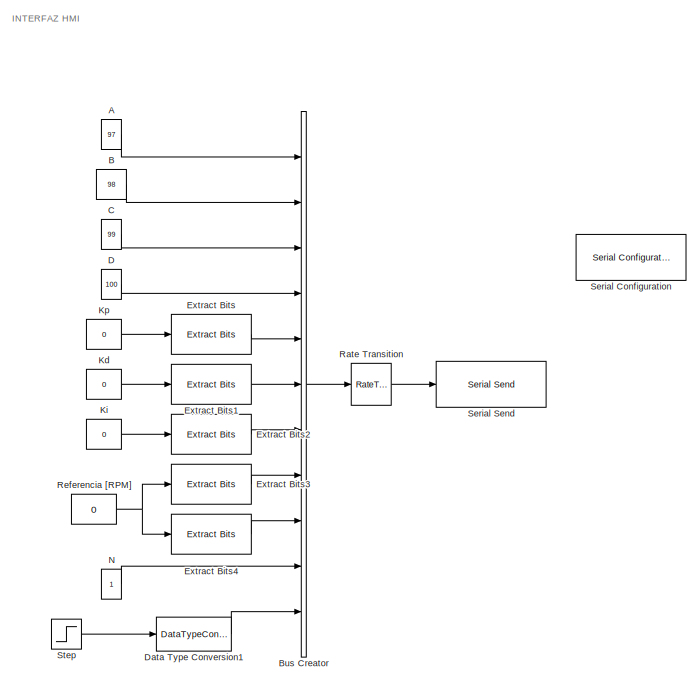
[diagram: root canvas - part 1/2, middle left region]
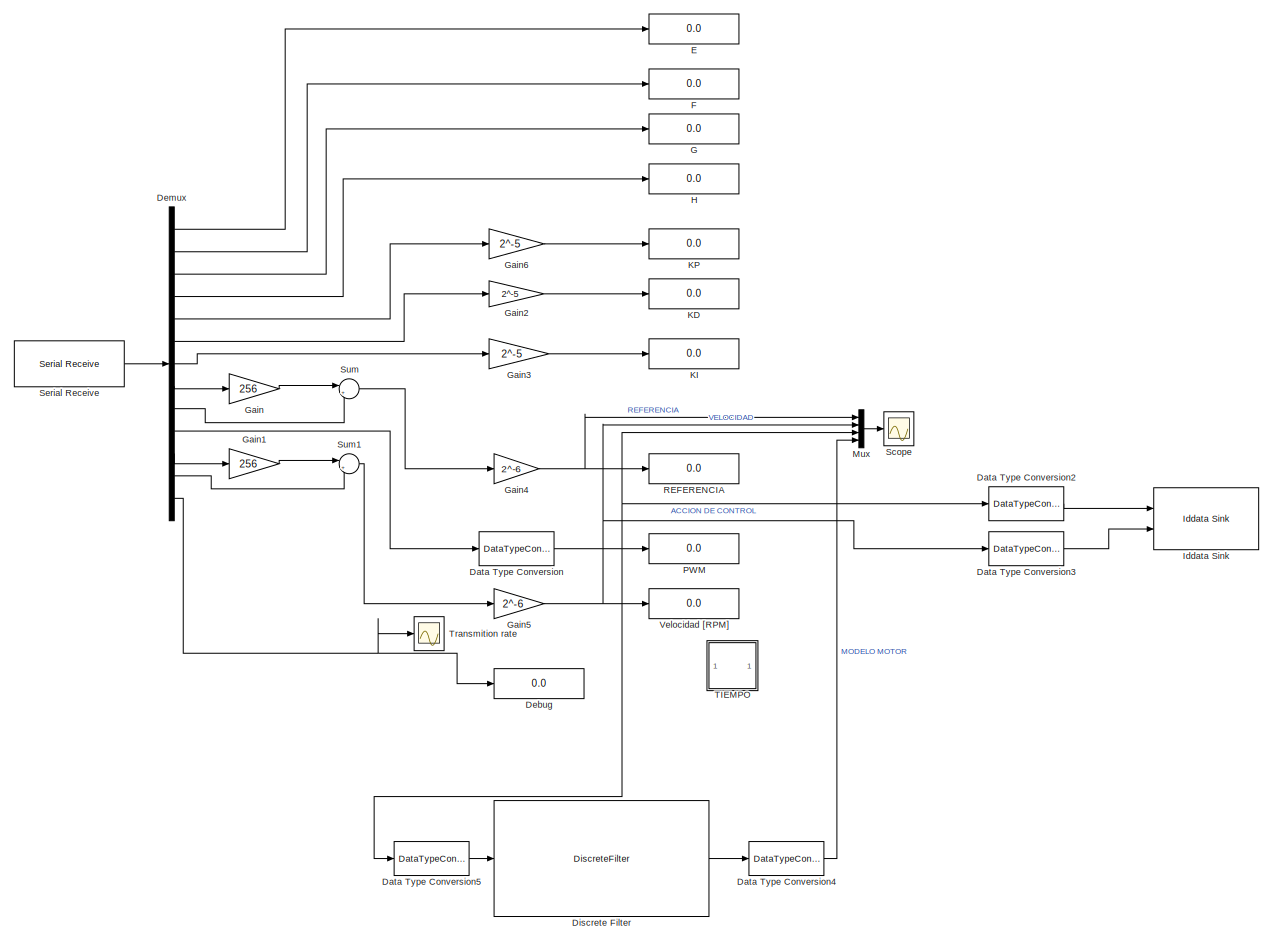
[diagram: root canvas - part 2/2, right side, full height]
MODEL slx_af8e4e631dcb
KIND model
CONFIG AbsTol = auto
CONFIG FixedStep = 0.05
CONFIG MaxStep = auto
CONFIG MinStep = auto
CONFIG RelTol = 1e-3
CONFIG SampleTimeConstraint = Unconstrained
CONFIG Solver = ode3
CONFIG SolverMode = Auto
CONFIG SolverName = ode3
CONFIG StartTime = 0.0
CONFIG StopTime = 10
BLOCK [Constant] A
  OutDataTypeStr = uint8
  SampleTime = 1
  Value = 97
BLOCK [Constant] B
  OutDataTypeStr = uint8
  SampleTime = 1
  Value = 98
BLOCK [BusCreator] Bus Creator
  DisplayOption = bar
  Inputs = 11
  Ports = [11, 1]
BLOCK [Constant] C
  OutDataTypeStr = uint8
  SampleTime = 1
  Value = 99
BLOCK [Constant] D
  OutDataTypeStr = uint8
  SampleTime = 1
  Value = 100
BLOCK [DataTypeConversion] Data Type Conversion
  RndMeth = Floor
  SaturateOnIntegerOverflow = off
BLOCK [DataTypeConversion] Data Type Conversion1
  RndMeth = Floor
  SaturateOnIntegerOverflow = off
BLOCK [DataTypeConversion] Data Type Conversion2
  RndMeth = Floor
  SaturateOnIntegerOverflow = off
BLOCK [DataTypeConversion] Data Type Conversion3
  RndMeth = Floor
  SaturateOnIntegerOverflow = off
BLOCK [DataTypeConversion] Data Type Conversion4
  RndMeth = Floor
  SaturateOnIntegerOverflow = off
BLOCK [DataTypeConversion] Data Type Conversion5
  RndMeth = Floor
  SaturateOnIntegerOverflow = off
BLOCK [Display] Debug 
  Decimation = 1
  Ports = [1]
BLOCK [Demux] Demux
  DisplayOption = bar
  Outputs = 13
  Ports = [1, 13]
BLOCK [DiscreteFilter] Discrete Filter
  Denominator = [1 -0.161 0.02637]
  InputPortMap = u0
  Numerator = [0 0.7476]
  Ports = [1, 1]
BLOCK [Display] E
  Decimation = 1
  Ports = [1]
BLOCK [Reference] Extract Bits  REF=simulink/Logic and Bit
Operations/Extract Bits
  Ports = [1, 1]
  SourceBlock = simulink/Logic and Bit\nOperations/Extract Bits
  SourceType = Extract Bits
  bitIdxRange = [0 7]
  bitsToExtract = Range starting with most significant bit
  numBits = 8
  outScalingMode = Treat bit field as an integer
BLOCK [Reference] Extract Bits1  REF=simulink/Logic and Bit
Operations/Extract Bits
  Ports = [1, 1]
  SourceBlock = simulink/Logic and Bit\nOperations/Extract Bits
  SourceType = Extract Bits
  bitIdxRange = [0 7]
  bitsToExtract = Range starting with most significant bit
  numBits = 8
  outScalingMode = Treat bit field as an integer
BLOCK [Reference] Extract Bits2  REF=simulink/Logic and Bit
Operations/Extract Bits
  Ports = [1, 1]
  SourceBlock = simulink/Logic and Bit\nOperations/Extract Bits
  SourceType = Extract Bits
  bitIdxRange = [0 7]
  bitsToExtract = Range starting with most significant bit
  numBits = 8
  outScalingMode = Treat bit field as an integer
BLOCK [Reference] Extract Bits3  REF=simulink/Logic and Bit
Operations/Extract Bits
  Ports = [1, 1]
  SourceBlock = simulink/Logic and Bit\nOperations/Extract Bits
  SourceType = Extract Bits
  bitIdxRange = [0 7]
  bitsToExtract = Upper half
  numBits = 8
  outScalingMode = Treat bit field as an integer
BLOCK [Reference] Extract Bits4  REF=simulink/Logic and Bit
Operations/Extract Bits
  Ports = [1, 1]
  SourceBlock = simulink/Logic and Bit\nOperations/Extract Bits
  SourceType = Extract Bits
  bitIdxRange = [0 7]
  bitsToExtract = Lower half
  numBits = 8
  outScalingMode = Treat bit field as an integer
BLOCK [Display] F
  Decimation = 1
  Ports = [1]
BLOCK [Display] G
  Decimation = 1
  Ports = [1]
BLOCK [Gain] Gain
  Gain = 256
  OutDataTypeStr = Inherit: Inherit via internal rule
  ParamDataTypeStr = Inherit: Inherit via internal rule
  SaturateOnIntegerOverflow = off
BLOCK [Gain] Gain1
  Gain = 256
  OutDataTypeStr = Inherit: Inherit via internal rule
  ParamDataTypeStr = Inherit: Inherit via internal rule
  SaturateOnIntegerOverflow = off
BLOCK [Gain] Gain2
  Gain = 2^-5
  OutDataTypeStr = Inherit: Inherit via internal rule
  ParamDataTypeStr = Inherit: Inherit via internal rule
  SaturateOnIntegerOverflow = off
BLOCK [Gain] Gain3
  Gain = 2^-5
  OutDataTypeStr = Inherit: Inherit via internal rule
  ParamDataTypeStr = Inherit: Inherit via internal rule
  SaturateOnIntegerOverflow = off
BLOCK [Gain] Gain4
  Gain = 2^-6
  OutDataTypeStr = Inherit: Inherit via internal rule
  ParamDataTypeStr = Inherit: Inherit via internal rule
  SaturateOnIntegerOverflow = off
BLOCK [Gain] Gain5
  Gain = 2^-6
  OutDataTypeStr = Inherit: Inherit via internal rule
  ParamDataTypeStr = Inherit: Inherit via internal rule
  SaturateOnIntegerOverflow = off
BLOCK [Gain] Gain6
  Gain = 2^-5
  OutDataTypeStr = Inherit: Inherit via internal rule
  ParamDataTypeStr = Inherit: Inherit via internal rule
  SaturateOnIntegerOverflow = off
BLOCK [Display] H
  Decimation = 1
  Ports = [1]
BLOCK [Reference] Iddata Sink  REF=slident/Iddata Sink  (lib defined in mdl_f7d4911ca73a)
  Ports = [2]
  SourceBlock = slident/Iddata Sink
  SourceType = IDDATA Sink
  Ts = 0.1
  datasetname = IDENTIFICACION
  isu = on
  isy = on
BLOCK [Display] KD
  Decimation = 1
  Ports = [1]
BLOCK [Display] KI
  Decimation = 1
  Ports = [1]
BLOCK [Display] KP
  Decimation = 1
  Ports = [1]
BLOCK [Constant] Kd
  OutDataTypeStr = fixdt(0,8,5)
  SampleTime = 1
  Value = 0
BLOCK [Constant] Ki
  OutDataTypeStr = fixdt(0,8,5)
  SampleTime = 1
  Value = 0
BLOCK [Constant] Kp
  OutDataTypeStr = fixdt(0,8,5, 'DataTypeOverride', 'Off')
  SampleTime = 1
  Value = 0
BLOCK [Mux] Mux
  DisplayOption = bar
  Ports = [4, 1]
BLOCK [Constant] N
  OutDataTypeStr = uint8
  SampleTime = 1
BLOCK [Display] PWM
  Decimation = 1
  Ports = [1]
BLOCK [Display] REFERENCIA
  Decimation = 3
  Ports = [1]
BLOCK [RateTransition] Rate Transition
  Integrity = off
  OutPortSampleTimeOpt = Inherit
BLOCK [Constant] Referencia [RPM]
  OutDataTypeStr = fixdt(0,16,6)
  SampleTime = 1
  Value = 0
BLOCK [Scope] Scope
  DataFormat = StructureWithTime
  Floating = off
  LegendLocations = 0.25764     0.43487      0.1855    0.065755
  LimitDataPoints = off
  NumInputPorts = 1
  Ports = [1]
  ShowLegends = on
  TimeRange = 10
  YMax = 250
  YMin = 0
BLOCK [Reference] Serial Configuration  REF=instrumentlib/Serial Configuration
  BaudRate = 9600
  ByteOrder = LittleEndian
  ComPort = COM4
  ComPortMenu = <Please select a port...>
  DataBits = 8
  FlowControl = none
  ObjConstructor = serial('COM4');
  Parity = none
  Ports = []
  Priority = -200000
  SourceBlock = instrumentlib/Serial Configuration
  SourceType = Serial Configuration
  StopBits = 1
  Timeout = 20
BLOCK [Reference] Serial Receive  REF=instrumentlib/Serial Receive
  ActionDataUnavailable = Output last received value
  ComPort = COM4
  ComPortMenu = COM4
  CustomValue = -1
  DataSize = [13   1]
  DataType = uint8
  EnableBlockingMode = on
  ObjConstructor = serial('COM4');
  Ports = [0, 1]
  SampleTime = 0.1
  SourceBlock = instrumentlib/Serial Receive
  SourceType = Serial Receive
  Terminator = <none>
BLOCK [Reference] Serial Send  REF=instrumentlib/Serial Send
  ComPort = COM4
  ComPortMenu = <Please select a port...>
  EnableBlockingMode = on
  ObjConstructor = serial('COM4');
  Ports = [1]
  SourceBlock = instrumentlib/Serial Send
  SourceType = Serial Send
  Terminator = <none>
BLOCK [Step] Step
  After = 200
  SampleTime = 0
  Time = 2
BLOCK [Sum] Sum
  IconShape = round
  InputSameDT = off
  Inputs = |++
  OutDataTypeStr = Inherit: Inherit via internal rule
  Ports = [2, 1]
  SaturateOnIntegerOverflow = off
BLOCK [Sum] Sum1
  IconShape = round
  InputSameDT = off
  Inputs = |++
  OutDataTypeStr = Inherit: Inherit via internal rule
  Ports = [2, 1]
  SaturateOnIntegerOverflow = off
BLOCK [SubSystem] TIEMPO
  DialogController = hmiCreateDDGDialog
  IsWebBlock = on
  MaskHideContents = on
  Ports = []
  RequestExecContextInheritance = off
BLOCK [Scope] Transmition rate
  DataFormat = StructureWithTime
  Floating = off
  LimitDataPoints = off
  NumInputPorts = 1
  Ports = [1]
  SaveName = ScopeData1
  YMax = 100
  YMin = 100
BLOCK [Display] Velocidad [RPM]
  Decimation = 1
  Ports = [1]
ANNOTATION (root): INTERFAZ HMI
LINE A:1 -> Bus Creator:1
LINE B:1 -> Bus Creator:2
LINE Bus Creator:1 -> Rate Transition:1
LINE C:1 -> Bus Creator:3
LINE D:1 -> Bus Creator:4
LINE Data Type Conversion1:1 -> Bus Creator:11
LINE Data Type Conversion2:1 -> Iddata Sink:1
LINE Data Type Conversion3:1 -> Iddata Sink:2
LINE Data Type Conversion4:1 -> Mux:4
LINE Data Type Conversion5:1 -> Discrete Filter:1
NET Data Type Conversion:1 -> Data Type Conversion2:1, Data Type Conversion5:1, Mux:3, PWM:1
LINE Demux:1 -> E:1
LINE Demux:10 -> Data Type Conversion:1
LINE Demux:11 -> Gain1:1
LINE Demux:12 -> Sum1:2
NET Demux:13 -> Debug :1, Transmition rate:1
LINE Demux:2 -> F:1
LINE Demux:3 -> G:1
LINE Demux:4 -> H:1
LINE Demux:5 -> Gain6:1
LINE Demux:6 -> Gain2:1
LINE Demux:7 -> Gain3:1
LINE Demux:8 -> Gain:1
LINE Demux:9 -> Sum:2
LINE Discrete Filter:1 -> Data Type Conversion4:1
LINE Extract Bits1:1 -> Bus Creator:6
LINE Extract Bits2:1 -> Bus Creator:7
LINE Extract Bits3:1 -> Bus Creator:8
LINE Extract Bits4:1 -> Bus Creator:9
LINE Extract Bits:1 -> Bus Creator:5
LINE Gain1:1 -> Sum1:1
LINE Gain2:1 -> KD:1
LINE Gain3:1 -> KI:1
NET Gain4:1 -> Mux:1, REFERENCIA:1
NET Gain5:1 -> Data Type Conversion3:1, Mux:2, Velocidad [RPM]:1
LINE Gain6:1 -> KP:1
LINE Gain:1 -> Sum:1
LINE Kd:1 -> Extract Bits1:1
LINE Ki:1 -> Extract Bits2:1
LINE Kp:1 -> Extract Bits:1
LINE Mux:1 -> Scope:1
LINE N:1 -> Bus Creator:10
LINE Rate Transition:1 -> Serial Send:1
NET Referencia [RPM]:1 -> Extract Bits3:1, Extract Bits4:1
LINE Serial Receive:1 -> Demux:1
LINE Step:1 -> Data Type Conversion1:1
LINE Sum1:1 -> Gain5:1
LINE Sum:1 -> Gain4:1
note: NET lines group one-source signal fan-out (src -> all destinations, sorted); 1:1 wires keep LINE
